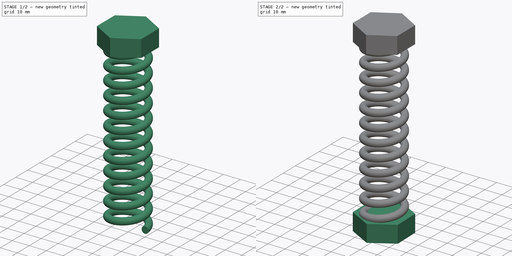
[diagram: build sequence overview — one tinted view per stage of 2, left to right]
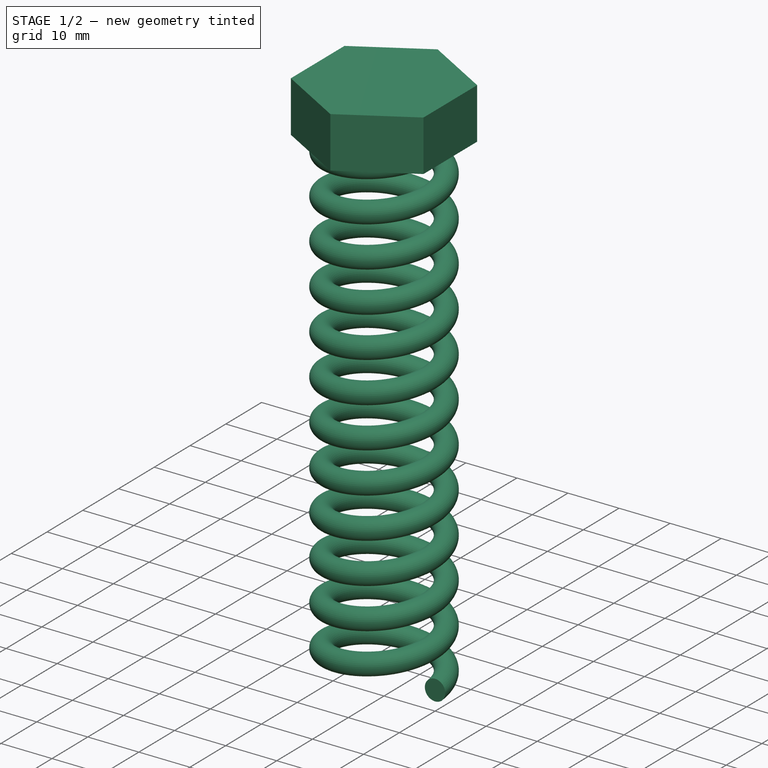
[diagram: stage 1 of 2 — iso view after this stage's code; geometry added in this stage tinted green]
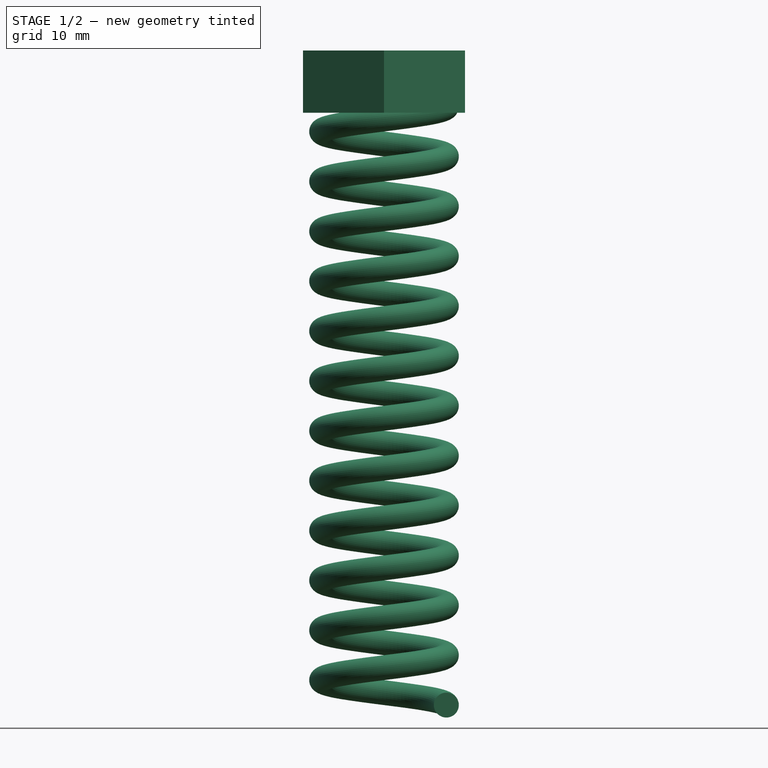
[diagram: stage 1 of 2 — front view after this stage's code; geometry added in this stage tinted green]
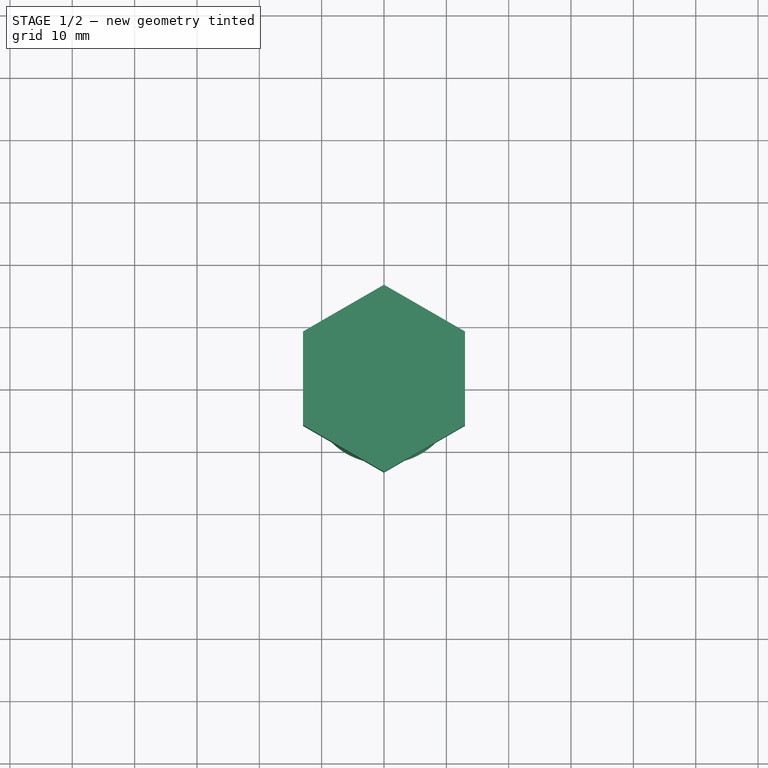
[diagram: stage 1 of 2 — top view after this stage's code; geometry added in this stage tinted green]
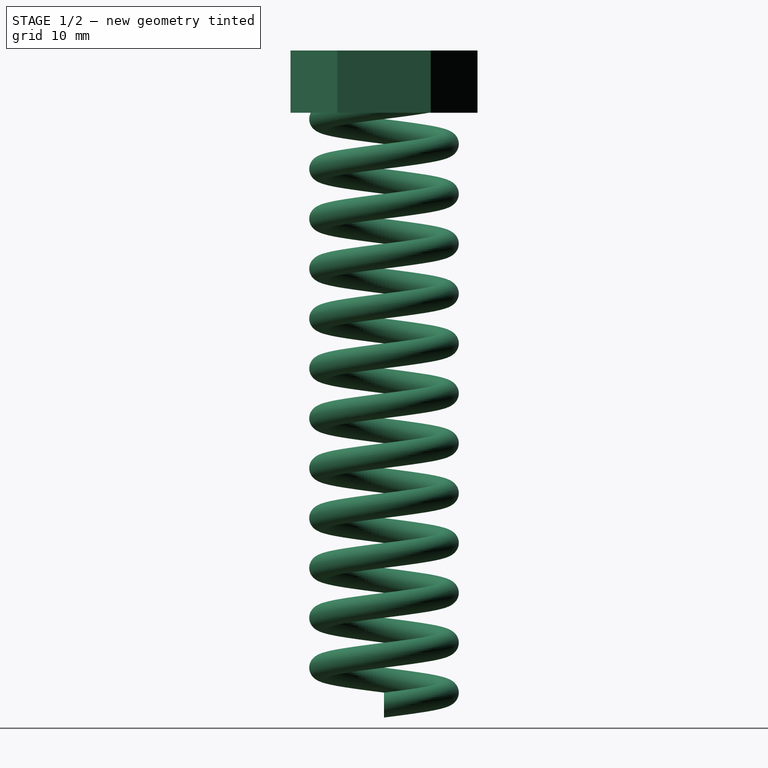
[diagram: stage 1 of 2 — right view after this stage's code; geometry added in this stage tinted green]
FCSTD DOCUMENT  (FreeCAD 0.21R33668 +26 (Git))
Label: Ressort-002
License: All rights reserved
LicenseURL: http://en.wikipedia.org/wiki/All_rights_reserved
objects: Sketcher::SketchObject×3, PartDesign::Pad×2, PartDesign::Body×2, Part::Helix×1, PartDesign::ShapeBinder×1, PartDesign::AdditivePipe×1, PartDesign::Plane×1
note: 14 computed .brp shape members not serialized (recipe doc carries the construction recipe); baked Part::Feature solids carry a one-line shape summary decoded from their .brp

FEATURE [Part::Helix] Helix  label="Hélice"
  Angle = 0
  AttacherType = Attacher::AttachEngine3D
  Height = 100
  LocalCoord = 0
  Pitch = 8
  Radius = 10
  SegmentLength = 0
  Style = 1
FEATURE [Sketcher::SketchObject] Sketch
  FullyConstrained = true
  MapMode = 5
  Placement = pos=(0,0,0) rot=(1,0,0;1.5708rad)
  Support = -> [XZ_Plane]
  sketch-geometry (1):
    g0: Circle CenterX=10 CenterY=0 CenterZ=0 NormalX=0 NormalY=0 NormalZ=1 AngleXU=0 Radius=2
  constraints (3):
    c: PointOnObject(g0,g-1)
    c: Radius(g0) = 2
    c: DistanceX(g-1,g0) = 10
FEATURE [PartDesign::ShapeBinder] ReferenceHelix
  Support = -> [Helix]
  TraceSupport = false
FEATURE [PartDesign::AdditivePipe] AdditivePipe
  AuxilleryCurvelinear = true
  AuxillerySpineTangent = false
  Binormal = (0,0,0)
  Mode = 2
  Placement = pos=(0,0,0) rot=(1,0,0;1.5708rad)
  Profile = -> Sketch
  Spine = -> ReferenceHelix
  SpineTangent = false
  Transformation = 0
  Transition = 0
FEATURE [PartDesign::Body] Body  label="Corps"
  Group = -> [Sketch,AdditivePipe,ReferenceHelix,DatumPlane,Sketch001,Pad]
  Origin = -> Origin
  Tip = -> Pad
FEATURE [Sketcher::SketchObject] Sketch002
  AttachmentOffset = pos=(0,0,100) rot=(0,0,1;0rad)
  FullyConstrained = true
  MapMode = 5
  Placement = pos=(0,0,100) rot=(0,0,1;0rad)
  Support = -> [XY_Plane001]
  sketch-geometry (7):
    g0: LineSegment StartX=12.9904 StartY=7.5 StartZ=0 EndX=0 EndY=15 EndZ=0
    g1: LineSegment StartX=0 StartY=15 StartZ=0 EndX=-12.9904 EndY=7.5 EndZ=0
    g2: LineSegment StartX=-12.9904 StartY=7.5 StartZ=0 EndX=-12.9904 EndY=-7.5 EndZ=0
    g3: LineSegment StartX=-12.9904 StartY=-7.5 StartZ=0 EndX=1.8e-15 EndY=-15 EndZ=0
    g4: LineSegment StartX=1.8e-15 StartY=-15 StartZ=0 EndX=12.9904 EndY=-7.5 EndZ=0
    g5: LineSegment StartX=12.9904 StartY=-7.5 StartZ=0 EndX=12.9904 EndY=7.5 EndZ=0
    g6: Circle CenterX=0 CenterY=0 CenterZ=0 NormalX=0 NormalY=0 NormalZ=1 AngleXU=0 Radius=15
  constraints (16):
    c: Coincident(g0,g1)
    c: Coincident(g1,g2)
    c: Coincident(g2,g3)
    c: Coincident(g3,g4)
    c: Coincident(g4,g5)
    c: Coincident(g5,g0)
    c: Equal(g0, g1-g5) x5
    c: PointOnObject(g0,g6)
    c: PointOnObject(g1,g6)
    c: PointOnObject(g2,g6)
    c: PointOnObject(g3,g6)
    c: PointOnObject(g4,g6)
    c: PointOnObject(g5,g6)
    c: Coincident(g6,g-1)
    c: Radius(g6) = 15
    c: PointOnObject(g0,g-2)
FEATURE [PartDesign::Pad] Pad001
  Direction = (0,0,1)
  Length = 10
  Length2 = 10
  Midplane = true
  Profile = -> Sketch002
  ReferenceAxis = -> Sketch002 [N_Axis]
  Type = 0
FEATURE [PartDesign::Body] Body001  label="Corps001"
  Group = -> [Sketch002,Pad001]
  Origin = -> Origin001
  Tip = -> Pad001
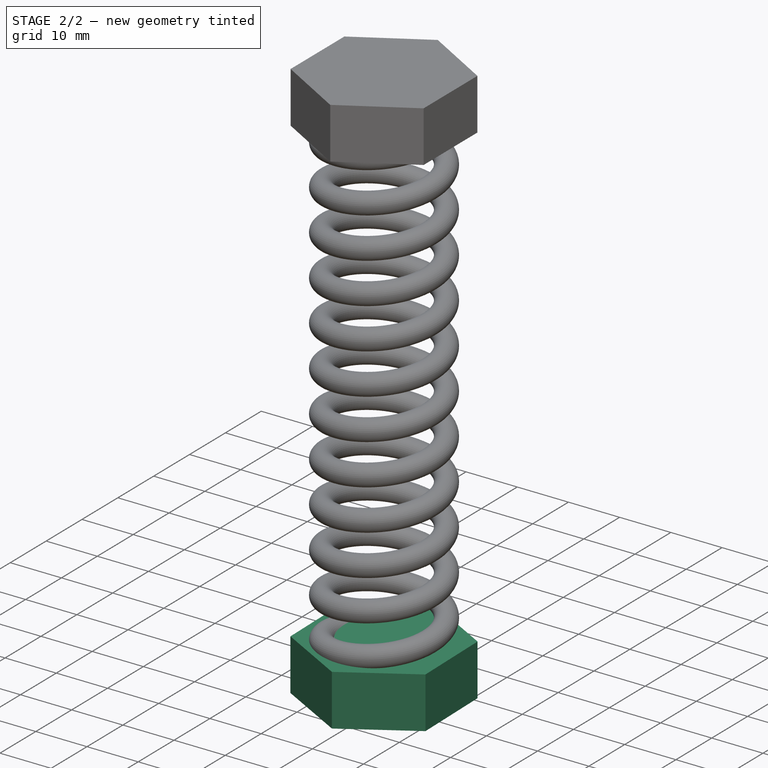
[diagram: stage 2 of 2 — iso view after this stage's code; geometry added in this stage tinted green]
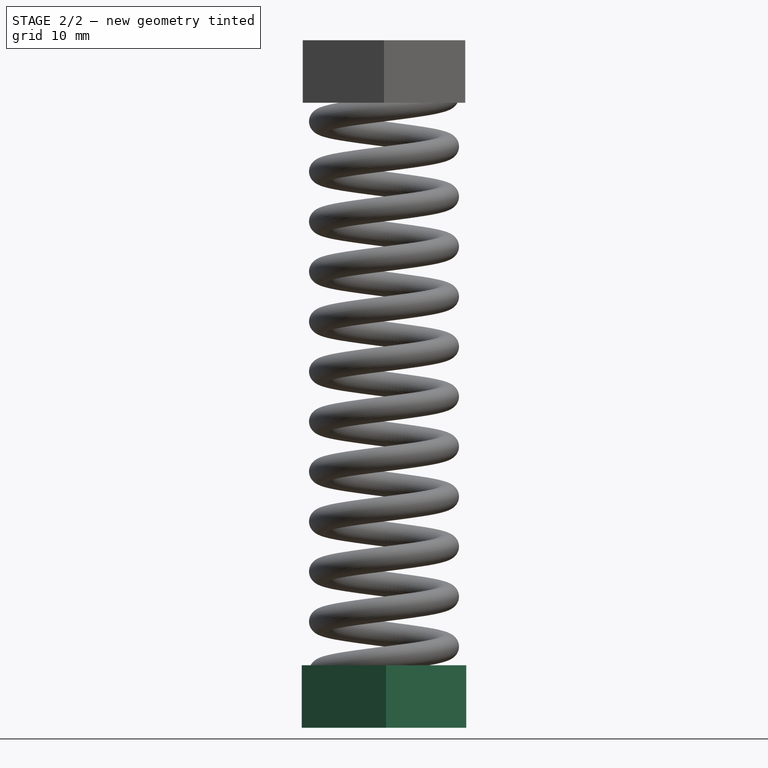
[diagram: stage 2 of 2 — front view after this stage's code; geometry added in this stage tinted green]
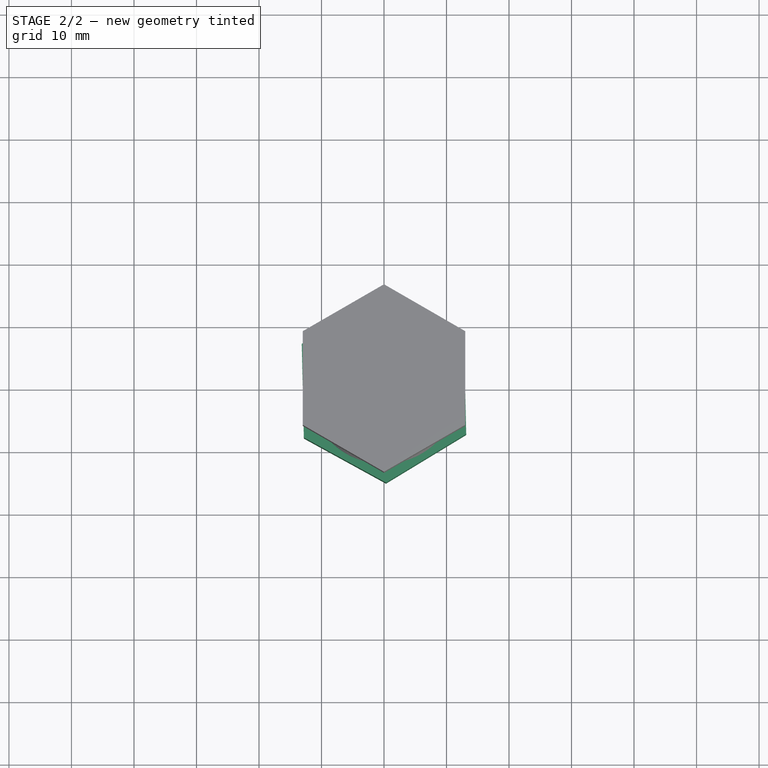
[diagram: stage 2 of 2 — top view after this stage's code; geometry added in this stage tinted green]
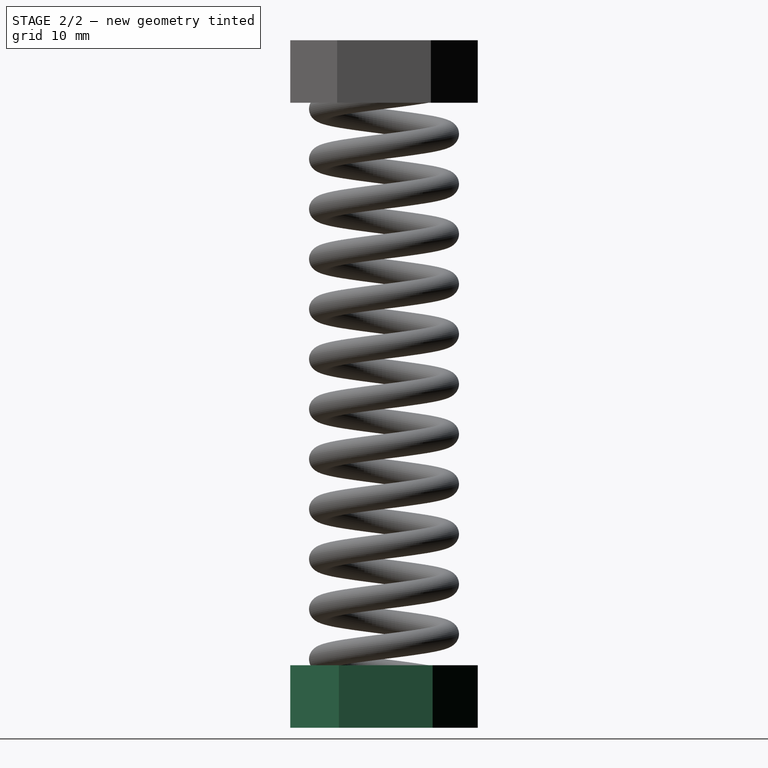
[diagram: stage 2 of 2 — right view after this stage's code; geometry added in this stage tinted green]
FEATURE [PartDesign::Plane] DatumPlane
  Length = 60
  MapMode = 3
  Placement = pos=(0,0,0) rot=(1,0,0;3.14159rad)
  ResizeMode = 0
  Support = -> [AdditivePipe]
  Width = 60
FEATURE [Sketcher::SketchObject] Sketch001
  FullyConstrained = false
  MapMode = 5
  Placement = pos=(0,0,0) rot=(1,0,0;3.14159rad)
  Support = -> [DatumPlane]
  sketch-geometry (7):
    g0: LineSegment StartX=13.1509 StartY=7.21484 StartZ=0 EndX=0.327216 EndY=14.9964 EndZ=0
    g1: LineSegment StartX=0.327216 StartY=14.9964 StartZ=0 EndX=-12.8237 EndY=7.78159 EndZ=0
    g2: LineSegment StartX=-12.8237 StartY=7.78159 StartZ=0 EndX=-13.1509 EndY=-7.21484 EndZ=0
    g3: LineSegment StartX=-13.1509 StartY=-7.21484 StartZ=0 EndX=-0.327216 EndY=-14.9964 EndZ=0
    g4: LineSegment StartX=-0.327216 StartY=-14.9964 StartZ=0 EndX=12.8237 EndY=-7.78159 EndZ=0
    g5: LineSegment StartX=12.8237 StartY=-7.78159 StartZ=0 EndX=13.1509 EndY=7.21484 EndZ=0
    g6: Circle CenterX=0 CenterY=0 CenterZ=0 NormalX=0 NormalY=0 NormalZ=1 AngleXU=0 Radius=15
  constraints (15):
    c: Coincident(g0,g1)
    c: Coincident(g1,g2)
    c: Coincident(g2,g3)
    c: Coincident(g3,g4)
    c: Coincident(g4,g5)
    c: Coincident(g5,g0)
    c: Equal(g0, g1-g5) x5
    c: PointOnObject(g0,g6)
    c: PointOnObject(g1,g6)
    c: PointOnObject(g2,g6)
    c: PointOnObject(g3,g6)
    c: PointOnObject(g4,g6)
    c: PointOnObject(g5,g6)
    c: Coincident(g6,g-1)
    c: Radius(g6) = 15
FEATURE [PartDesign::Pad] Pad
  BaseFeature = -> AdditivePipe
  Direction = (0,0,-1)
  Length = 10
  Length2 = 10
  Midplane = true
  Placement = pos=(0,0,0) rot=(1,0,0;1.5708rad)
  Profile = -> Sketch001
  ReferenceAxis = -> Sketch001 [N_Axis]
  Type = 0
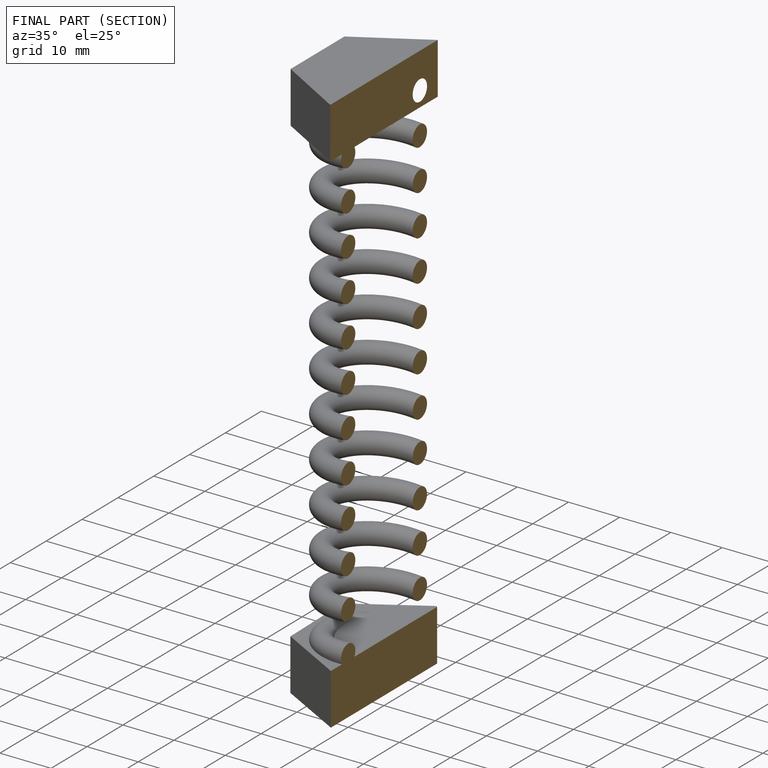
[diagram: finished part — half-section view (interior)]
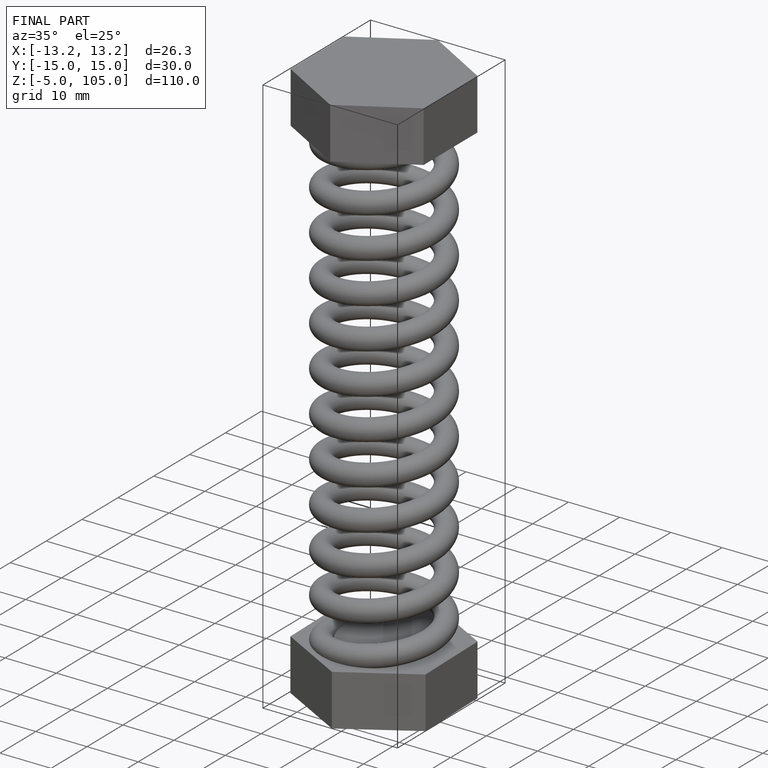
[diagram: finished part — iso view with bounding-box wireframe]
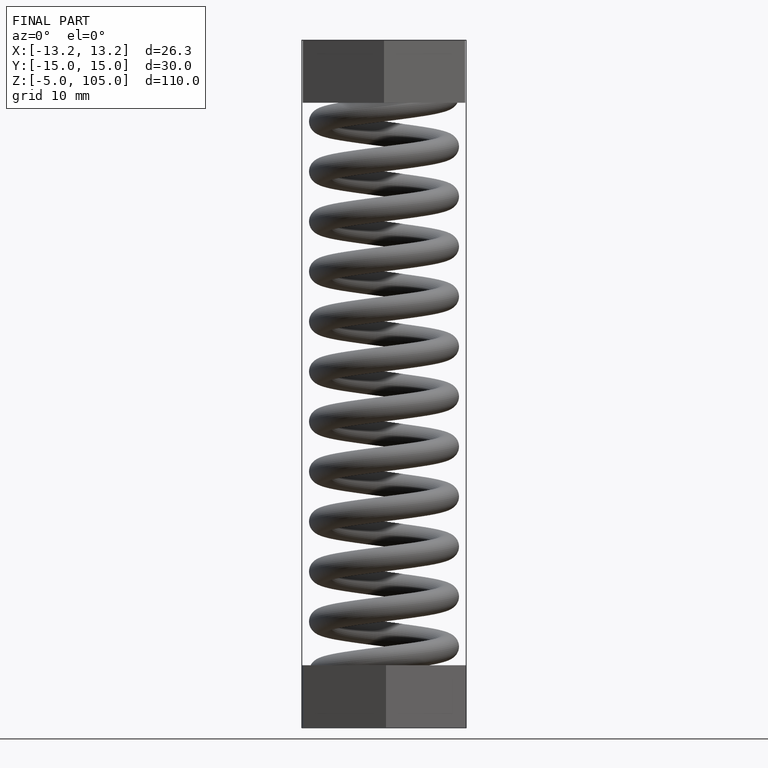
[diagram: finished part — front view with bounding-box wireframe]
